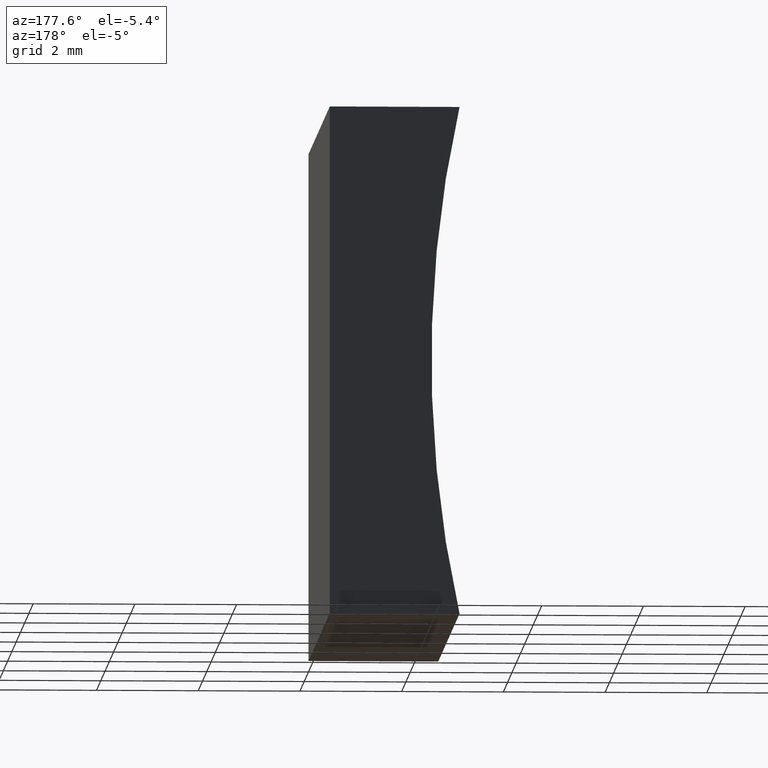
[diagram: clean part render]
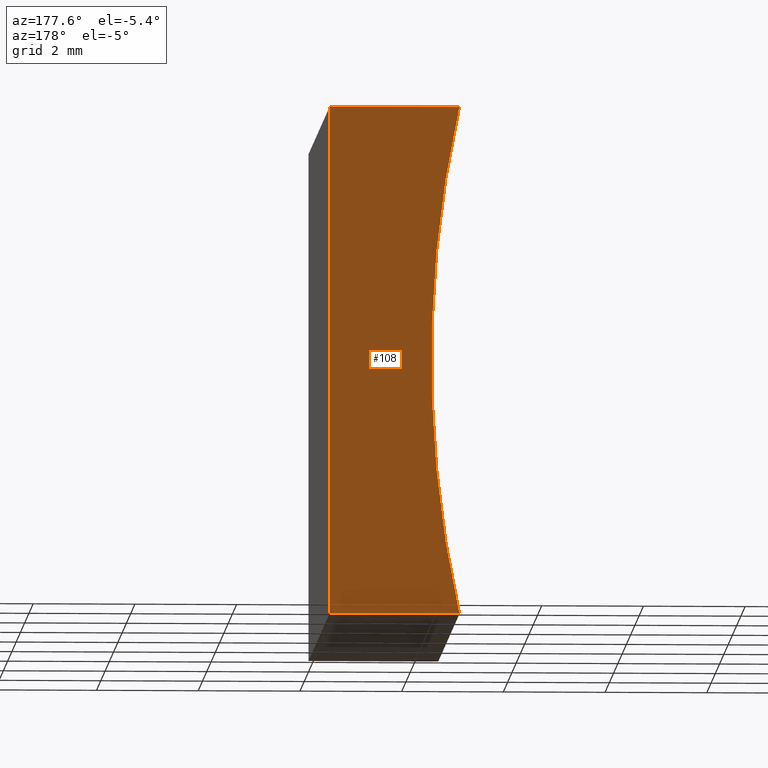
[diagram: same view with one face highlighted and labeled with its STEP entity id]
A machine part, auxiliary view. The second image highlights one B-rep face of the part: STEP entity #108.
In plain terms, the highlighted planar face has unit normal (0, 1, 0).
Its self-contained STEP definition (entity closure, byte-faithful):
#6 = CARTESIAN_POINT ( 'NONE',  ( -24.92000000000000200, 10.00000000000000000, 5.000000000000003600 ) ) ;
#8 = FACE_OUTER_BOUND ( 'NONE', #28, .T. ) ;
#14 = CARTESIAN_POINT ( 'NONE',  ( 0.0000000000000000000, 10.00000000000000000, 0.0000000000000000000 ) ) ;
#15 = ORIENTED_EDGE ( 'NONE', *, *, #187, .T. ) ;
#22 = AXIS2_PLACEMENT_3D ( 'NONE', #78, #188, #164 ) ;
#25 = VECTOR ( 'NONE', #94, 1000.000000000000000 ) ;
#28 = EDGE_LOOP ( 'NONE', ( #15, #93, #64, #30 ) ) ;
#30 = ORIENTED_EDGE ( 'NONE', *, *, #150, .T. ) ;
#35 = CARTESIAN_POINT ( 'NONE',  ( -2.552022889854344400, 10.00000000000000000, 10.00000000000000200 ) ) ;
#38 = CARTESIAN_POINT ( 'NONE',  ( 0.0000000000000000000, 10.00000000000000000, 0.0000000000000000000 ) ) ;
#41 = CIRCLE ( 'NONE', #199, 22.91999999999999800 ) ;
#49 = VECTOR ( 'NONE', #133, 1000.000000000000000 ) ;
#51 = CARTESIAN_POINT ( 'NONE',  ( 0.0000000000000000000, 10.00000000000000000, 0.0000000000000000000 ) ) ;
#55 = PLANE ( 'NONE',  #22 ) ;
#64 = ORIENTED_EDGE ( 'NONE', *, *, #136, .T. ) ;
#66 = CARTESIAN_POINT ( 'NONE',  ( 6.123233995736766300E-016, 10.00000000000000000, 10.00000000000000000 ) ) ;
#78 = CARTESIAN_POINT ( 'NONE',  ( -24.92000000000000200, 10.00000000000000000, 5.000000000000003600 ) ) ;
#93 = ORIENTED_EDGE ( 'NONE', *, *, #202, .T. ) ;
#94 = DIRECTION ( 'NONE',  ( 1.000000000000000000, -0.0000000000000000000, -6.797444814751702500E-016 ) ) ;
#108 = ADVANCED_FACE ( 'NONE', ( #8 ), #55, .T. ) ;
#109 = VERTEX_POINT ( 'NONE', #130 ) ;
#110 = VERTEX_POINT ( 'NONE', #35 ) ;
#130 = CARTESIAN_POINT ( 'NONE',  ( -2.552022889854347600, 10.00000000000000000, -3.469446951953614200E-015 ) ) ;
#133 = DIRECTION ( 'NONE',  ( -6.123233995736766000E-017, -0.0000000000000000000, -1.000000000000000000 ) ) ;
#134 = VECTOR ( 'NONE', #158, 1000.000000000000000 ) ;
#136 = EDGE_CURVE ( 'NONE', #110, #201, #172, .T. ) ;
#142 = DIRECTION ( 'NONE',  ( -0.0000000000000000000, -1.000000000000000000, -0.0000000000000000000 ) ) ;
#149 = CARTESIAN_POINT ( 'NONE',  ( 6.123233995736766300E-016, 10.00000000000000000, 10.00000000000000000 ) ) ;
#150 = EDGE_CURVE ( 'NONE', #201, #171, #194, .T. ) ;
#158 = DIRECTION ( 'NONE',  ( -1.000000000000000000, 0.0000000000000000000, -6.797444814751699500E-016 ) ) ;
#159 = DIRECTION ( 'NONE',  ( 0.0000000000000000000, 0.0000000000000000000, 1.000000000000000000 ) ) ;
#164 = DIRECTION ( 'NONE',  ( 0.0000000000000000000, -0.0000000000000000000, 1.000000000000000000 ) ) ;
#171 = VERTEX_POINT ( 'NONE', #38 ) ;
#172 = LINE ( 'NONE', #66, #25 ) ;
#178 = LINE ( 'NONE', #14, #134 ) ;
#187 = EDGE_CURVE ( 'NONE', #171, #109, #178, .T. ) ;
#188 = DIRECTION ( 'NONE',  ( 0.0000000000000000000, 1.000000000000000000, 0.0000000000000000000 ) ) ;
#194 = LINE ( 'NONE', #51, #49 ) ;
#199 = AXIS2_PLACEMENT_3D ( 'NONE', #6, #142, #159 ) ;
#201 = VERTEX_POINT ( 'NONE', #149 ) ;
#202 = EDGE_CURVE ( 'NONE', #109, #110, #41, .T. ) ;